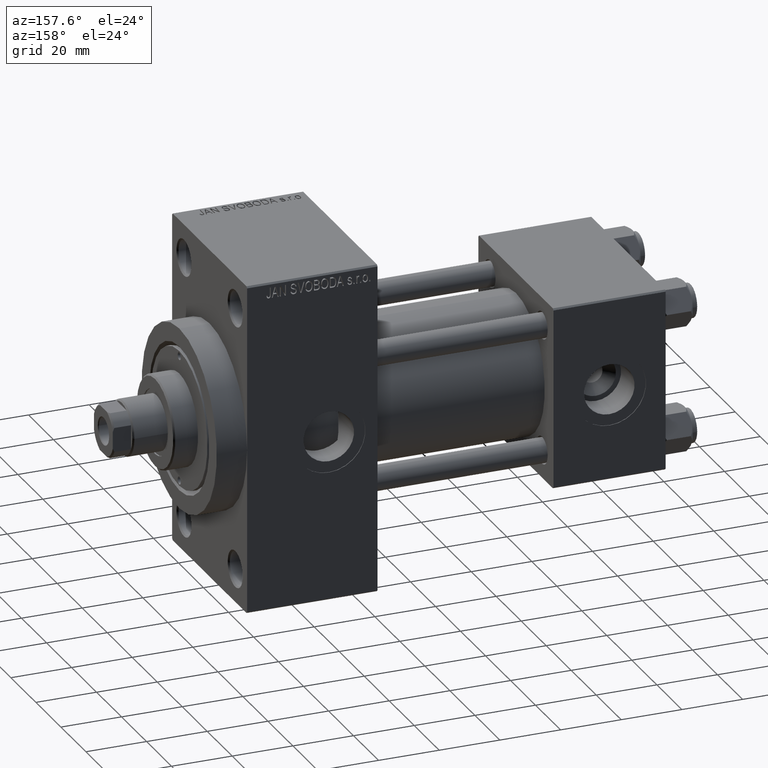
[diagram: clean part render]
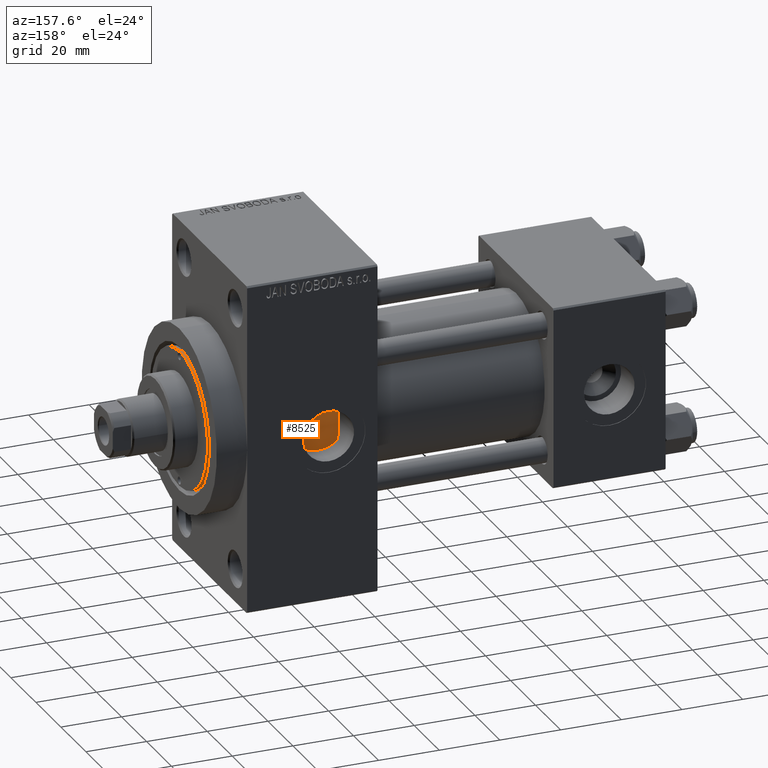
[diagram: same view with one face highlighted and labeled with its STEP entity id]
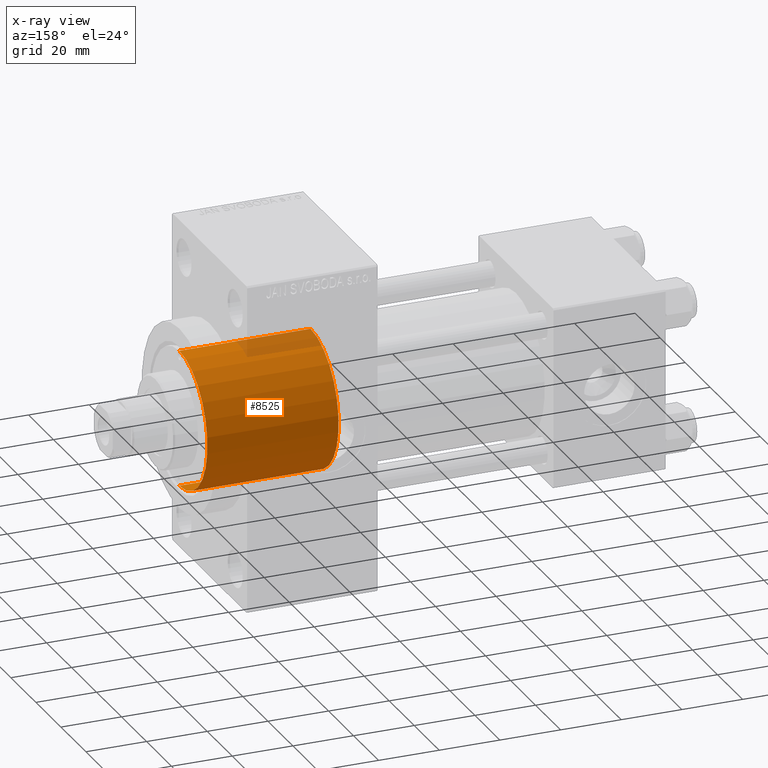
[diagram: x-ray of the same camera — body ghosted, the highlighted face saturated]
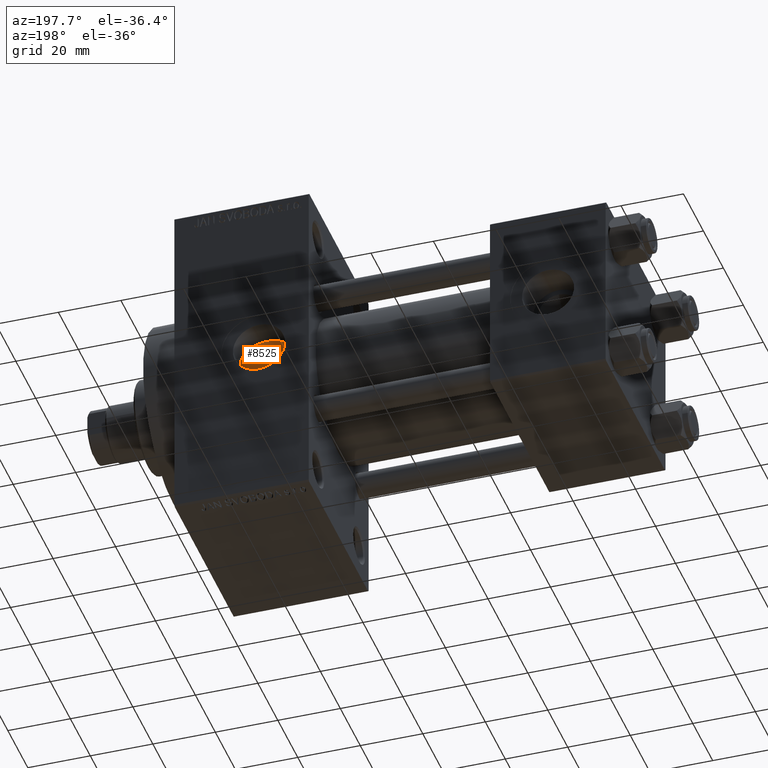
[diagram: same view with one face highlighted and labeled with its STEP entity id]
A machine part, auxiliary view. The second image highlights one B-rep face of the part: STEP entity #8525.
The next image is the same camera in x-ray: the body ghosted, the highlighted face saturated — about 7% of this face is hidden behind the body in this view.
A second angle (auxiliary view) of the same face is appended — the face is thin or edge-on in the first view.
In plain terms, the highlighted cylindrical surface (partial cylindrical patch) has radius 22.5 mm, axis along (-1, 0, 0).
Its self-contained STEP definition (entity closure, byte-faithful):
#515 = CARTESIAN_POINT ( 'NONE',  ( -22.50000000000000355, 0.000000000000000000, 0.000000000000000000 ) ) ;
#2180 = AXIS2_PLACEMENT_3D ( 'NONE', #42397, #9059, #9525 ) ;
#2636 = AXIS2_PLACEMENT_3D ( 'NONE', #3408, #18040, #40369 ) ;
#3408 = CARTESIAN_POINT ( 'NONE',  ( 0.000000000000000000, 0.000000000000000000, 43.25999999999999801 ) ) ;
#4745 = CARTESIAN_POINT ( 'NONE',  ( 22.50000000000000355, 2.755455298081545172E-15, 0.000000000000000000 ) ) ;
#5727 = EDGE_CURVE ( 'NONE', #6391, #31918, #31934, .T. ) ;
#6391 = VERTEX_POINT ( 'NONE', #46141 ) ;
#7424 = VECTOR ( 'NONE', #16522, 1000.000000000000000 ) ;
#8134 = EDGE_CURVE ( 'NONE', #34812, #6391, #25611, .T. ) ;
#8525 = ADVANCED_FACE ( 'NONE', ( #38136 ), #34521, .T. ) ;
#8697 = EDGE_LOOP ( 'NONE', ( #28052, #41196, #23046, #33229 ) ) ;
#9059 = DIRECTION ( 'NONE',  ( 0.000000000000000000, 0.000000000000000000, 1.000000000000000000 ) ) ;
#9525 = DIRECTION ( 'NONE',  ( 1.000000000000000000, 0.000000000000000000, 0.000000000000000000 ) ) ;
#12602 = AXIS2_PLACEMENT_3D ( 'NONE', #42444, #38603, #27092 ) ;
#13251 = VERTEX_POINT ( 'NONE', #515 ) ;
#13737 = EDGE_CURVE ( 'NONE', #34812, #13251, #46037, .T. ) ;
#16178 = DIRECTION ( 'NONE',  ( -0.000000000000000000, -0.000000000000000000, -1.000000000000000000 ) ) ;
#16522 = DIRECTION ( 'NONE',  ( -0.000000000000000000, -0.000000000000000000, -1.000000000000000000 ) ) ;
#16995 = CARTESIAN_POINT ( 'NONE',  ( -22.50000000000000355, 0.000000000000000000, 43.25999999999999801 ) ) ;
#18040 = DIRECTION ( 'NONE',  ( 0.000000000000000000, 0.000000000000000000, 1.000000000000000000 ) ) ;
#21316 = EDGE_CURVE ( 'NONE', #13251, #31918, #22850, .T. ) ;
#22850 = CIRCLE ( 'NONE', #2180, 22.50000000000000355 ) ;
#23046 = ORIENTED_EDGE ( 'NONE', *, *, #13737, .T. ) ;
#25611 = CIRCLE ( 'NONE', #2636, 22.50000000000000355 ) ;
#27092 = DIRECTION ( 'NONE',  ( -1.000000000000000000, 0.000000000000000000, 0.000000000000000000 ) ) ;
#28052 = ORIENTED_EDGE ( 'NONE', *, *, #5727, .F. ) ;
#31918 = VERTEX_POINT ( 'NONE', #4745 ) ;
#31934 = LINE ( 'NONE', #46811, #43946 ) ;
#33229 = ORIENTED_EDGE ( 'NONE', *, *, #21316, .T. ) ;
#34521 = CYLINDRICAL_SURFACE ( 'NONE', #12602, 22.50000000000000355 ) ;
#34812 = VERTEX_POINT ( 'NONE', #36430 ) ;
#36430 = CARTESIAN_POINT ( 'NONE',  ( -22.50000000000000355, 0.000000000000000000, 43.25999999999999801 ) ) ;
#38136 = FACE_OUTER_BOUND ( 'NONE', #8697, .T. ) ;
#38603 = DIRECTION ( 'NONE',  ( -0.000000000000000000, -0.000000000000000000, -1.000000000000000000 ) ) ;
#40369 = DIRECTION ( 'NONE',  ( 1.000000000000000000, 0.000000000000000000, 0.000000000000000000 ) ) ;
#41196 = ORIENTED_EDGE ( 'NONE', *, *, #8134, .F. ) ;
#42397 = CARTESIAN_POINT ( 'NONE',  ( 0.000000000000000000, 0.000000000000000000, 0.000000000000000000 ) ) ;
#42444 = CARTESIAN_POINT ( 'NONE',  ( 0.000000000000000000, 0.000000000000000000, 43.25999999999999801 ) ) ;
#43946 = VECTOR ( 'NONE', #16178, 1000.000000000000000 ) ;
#46037 = LINE ( 'NONE', #16995, #7424 ) ;
#46141 = CARTESIAN_POINT ( 'NONE',  ( 22.50000000000000355, 2.755455298081545172E-15, 43.25999999999999801 ) ) ;
#46811 = CARTESIAN_POINT ( 'NONE',  ( 22.50000000000000355, 2.755455298081545172E-15, 43.25999999999999801 ) ) ;